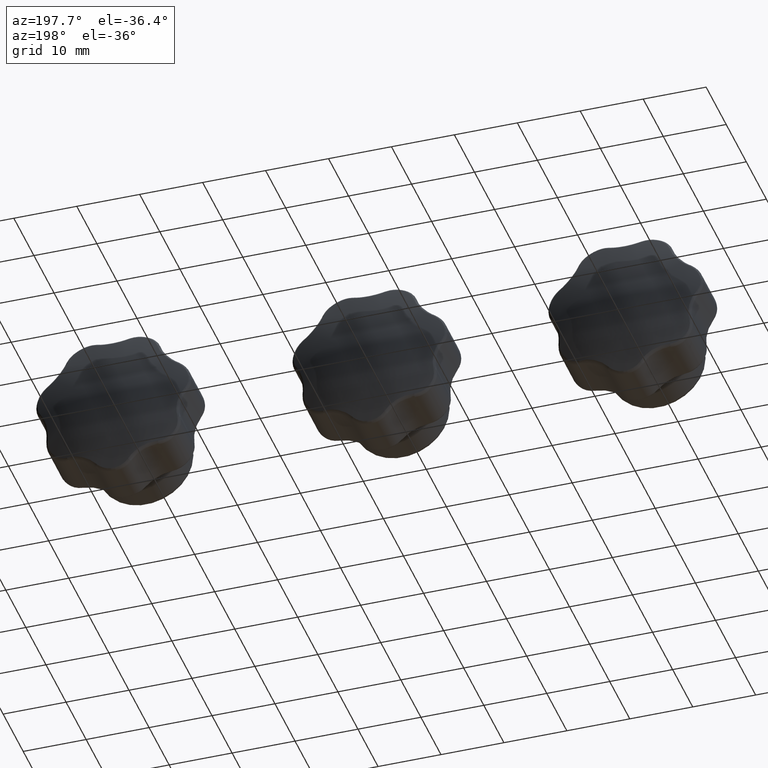
[diagram: clean part render]
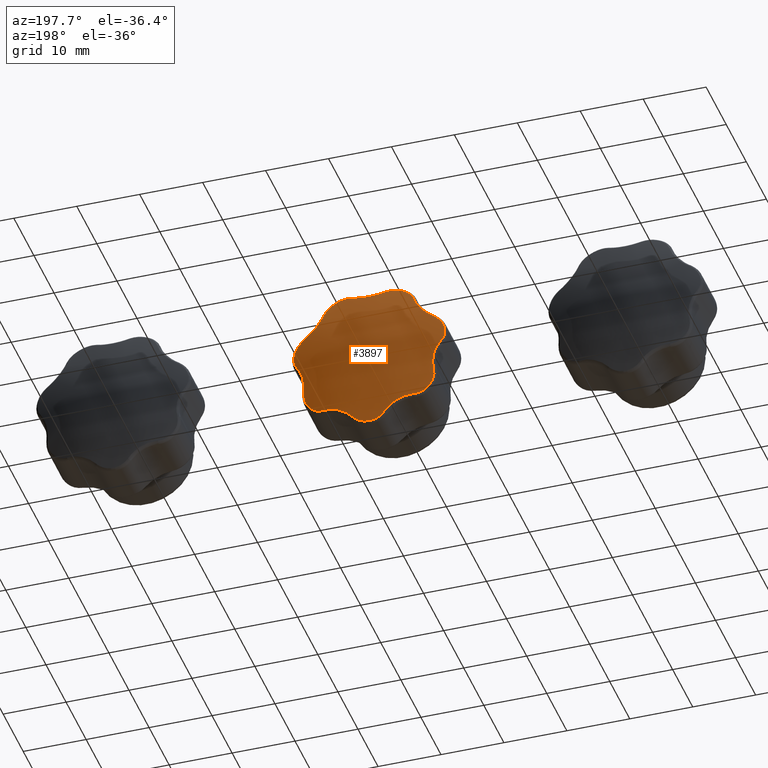
[diagram: same view with one face highlighted and labeled with its STEP entity id]
A machine part, auxiliary view. The second image highlights one B-rep face of the part: STEP entity #3897.
In plain terms, the highlighted spherical surface has radius 32.5 mm.
Its self-contained STEP definition (entity closure, byte-faithful):
#42=SPHERICAL_SURFACE('',#4326,32.4999999999999);
#365=B_SPLINE_CURVE_WITH_KNOTS('',3,(#6995,#6996,#6997,#6998,#6999),
 .UNSPECIFIED.,.F.,.F.,(4,1,4),(-0.537938930368822,-0.30739367449647,0.),
 .UNSPECIFIED.);
#368=B_SPLINE_CURVE_WITH_KNOTS('',3,(#7034,#7035,#7036,#7037),
 .UNSPECIFIED.,.F.,.F.,(4,4),(0.,0.241675960277011),.UNSPECIFIED.);
#370=B_SPLINE_CURVE_WITH_KNOTS('',3,(#7071,#7072,#7073,#7074),
 .UNSPECIFIED.,.F.,.F.,(4,4),(0.,0.241675824520155),.UNSPECIFIED.);
#371=B_SPLINE_CURVE_WITH_KNOTS('',3,(#7103,#7104,#7105,#7106,#7107),
 .UNSPECIFIED.,.F.,.F.,(4,1,4),(-0.537938011270218,-0.307393149297267,-9.18793732752318E-17),
 .UNSPECIFIED.);
#374=B_SPLINE_CURVE_WITH_KNOTS('',3,(#7140,#7141,#7142,#7143),
 .UNSPECIFIED.,.F.,.F.,(4,4),(0.,0.241675589524243),.UNSPECIFIED.);
#376=B_SPLINE_CURVE_WITH_KNOTS('',3,(#7177,#7178,#7179,#7180),
 .UNSPECIFIED.,.F.,.F.,(4,4),(0.,0.241674934807867),.UNSPECIFIED.);
#377=B_SPLINE_CURVE_WITH_KNOTS('',3,(#7209,#7210,#7211,#7212,#7213),
 .UNSPECIFIED.,.F.,.F.,(4,1,4),(-0.537938787143085,-0.307393592653191,0.),
 .UNSPECIFIED.);
#380=B_SPLINE_CURVE_WITH_KNOTS('',3,(#7246,#7247,#7248,#7249),
 .UNSPECIFIED.,.F.,.F.,(4,4),(0.,0.241675960277012),.UNSPECIFIED.);
#382=B_SPLINE_CURVE_WITH_KNOTS('',3,(#7283,#7284,#7285,#7286),
 .UNSPECIFIED.,.F.,.F.,(4,4),(0.,0.241675810913864),.UNSPECIFIED.);
#383=B_SPLINE_CURVE_WITH_KNOTS('',3,(#7315,#7316,#7317,#7318,#7319),
 .UNSPECIFIED.,.F.,.F.,(4,1,4),(-0.537936178785144,-0.230544076622204,-2.16219905471936E-17),
 .UNSPECIFIED.);
#386=B_SPLINE_CURVE_WITH_KNOTS('',3,(#7352,#7353,#7354,#7355),
 .UNSPECIFIED.,.F.,.F.,(4,4),(0.,0.241675587007755),.UNSPECIFIED.);
#388=B_SPLINE_CURVE_WITH_KNOTS('',3,(#7389,#7390,#7391,#7392),
 .UNSPECIFIED.,.F.,.F.,(4,4),(0.,0.241674934807867),.UNSPECIFIED.);
#389=B_SPLINE_CURVE_WITH_KNOTS('',3,(#7421,#7422,#7423,#7424,#7425),
 .UNSPECIFIED.,.F.,.F.,(4,1,4),(-0.537938793019843,-0.230545197008504,-2.04964250700022E-17),
 .UNSPECIFIED.);
#392=B_SPLINE_CURVE_WITH_KNOTS('',3,(#7458,#7459,#7460,#7461),
 .UNSPECIFIED.,.F.,.F.,(4,4),(0.,0.241675960277011),.UNSPECIFIED.);
#394=B_SPLINE_CURVE_WITH_KNOTS('',3,(#7495,#7496,#7497,#7498),
 .UNSPECIFIED.,.F.,.F.,(4,4),(0.,0.241675820909188),.UNSPECIFIED.);
#395=B_SPLINE_CURVE_WITH_KNOTS('',3,(#7527,#7528,#7529,#7530,#7531),
 .UNSPECIFIED.,.F.,.F.,(4,1,4),(-0.537938019927031,-0.307393154244018,-1.80748575954988E-16),
 .UNSPECIFIED.);
#398=B_SPLINE_CURVE_WITH_KNOTS('',3,(#7564,#7565,#7566,#7567),
 .UNSPECIFIED.,.F.,.F.,(4,4),(0.,0.241675590469706),.UNSPECIFIED.);
#400=B_SPLINE_CURVE_WITH_KNOTS('',3,(#7601,#7602,#7603,#7604),
 .UNSPECIFIED.,.F.,.F.,(4,4),(0.,0.241674934814627),.UNSPECIFIED.);
#401=B_SPLINE_CURVE_WITH_KNOTS('',3,(#7633,#7634,#7635,#7636,#7637),
 .UNSPECIFIED.,.F.,.F.,(4,1,4),(-0.537938930368822,-0.230545255872352,-2.07092251702957E-16),
 .UNSPECIFIED.);
#404=B_SPLINE_CURVE_WITH_KNOTS('',3,(#7670,#7671,#7672,#7673),
 .UNSPECIFIED.,.F.,.F.,(4,4),(0.,0.24167596027701),.UNSPECIFIED.);
#406=B_SPLINE_CURVE_WITH_KNOTS('',3,(#7704,#7705,#7706,#7707),
 .UNSPECIFIED.,.F.,.F.,(4,4),(3.54558241127934E-16,0.241675960277011),
 .UNSPECIFIED.);
#753=FACE_OUTER_BOUND('',#1036,.T.);
#1036=EDGE_LOOP('',(#3118,#3119,#3120,#3121,#3122,#3123,#3124,#3125,#3126,
#3127,#3128,#3129,#3130,#3131,#3132,#3133,#3134,#3135,#3136,#3137,#3138,
#3139,#3140,#3141,#3142,#3143,#3144,#3145));
#1325=CIRCLE('',#4254,12.1875);
#1331=CIRCLE('',#4261,12.1875);
#1337=CIRCLE('',#4268,12.1875);
#1343=CIRCLE('',#4275,12.1875);
#1349=CIRCLE('',#4282,12.1875);
#1355=CIRCLE('',#4289,12.1875);
#1361=CIRCLE('',#4296,12.1875);
#1704=VERTEX_POINT('',#6992);
#1705=VERTEX_POINT('',#6994);
#1708=VERTEX_POINT('',#7032);
#1710=VERTEX_POINT('',#7040);
#1712=VERTEX_POINT('',#7069);
#1714=VERTEX_POINT('',#7101);
#1716=VERTEX_POINT('',#7138);
#1718=VERTEX_POINT('',#7146);
#1720=VERTEX_POINT('',#7175);
#1722=VERTEX_POINT('',#7207);
#1724=VERTEX_POINT('',#7244);
#1726=VERTEX_POINT('',#7252);
#1728=VERTEX_POINT('',#7281);
#1730=VERTEX_POINT('',#7313);
#1732=VERTEX_POINT('',#7350);
#1734=VERTEX_POINT('',#7358);
#1736=VERTEX_POINT('',#7387);
#1738=VERTEX_POINT('',#7419);
#1740=VERTEX_POINT('',#7456);
#1742=VERTEX_POINT('',#7464);
#1744=VERTEX_POINT('',#7493);
#1746=VERTEX_POINT('',#7525);
#1748=VERTEX_POINT('',#7562);
#1750=VERTEX_POINT('',#7570);
#1752=VERTEX_POINT('',#7599);
#1754=VERTEX_POINT('',#7631);
#1756=VERTEX_POINT('',#7668);
#1758=VERTEX_POINT('',#7676);
#2142=EDGE_CURVE('',#1704,#1705,#365,.T.);
#2147=EDGE_CURVE('',#1708,#1704,#368,.T.);
#2149=EDGE_CURVE('',#1710,#1708,#1325,.T.);
#2153=EDGE_CURVE('',#1712,#1710,#370,.T.);
#2155=EDGE_CURVE('',#1714,#1712,#371,.T.);
#2159=EDGE_CURVE('',#1716,#1714,#374,.T.);
#2161=EDGE_CURVE('',#1718,#1716,#1331,.T.);
#2165=EDGE_CURVE('',#1720,#1718,#376,.T.);
#2167=EDGE_CURVE('',#1722,#1720,#377,.T.);
#2171=EDGE_CURVE('',#1724,#1722,#380,.T.);
#2173=EDGE_CURVE('',#1726,#1724,#1337,.T.);
#2177=EDGE_CURVE('',#1728,#1726,#382,.T.);
#2179=EDGE_CURVE('',#1730,#1728,#383,.T.);
#2183=EDGE_CURVE('',#1732,#1730,#386,.T.);
#2185=EDGE_CURVE('',#1734,#1732,#1343,.T.);
#2189=EDGE_CURVE('',#1736,#1734,#388,.T.);
#2191=EDGE_CURVE('',#1738,#1736,#389,.T.);
#2195=EDGE_CURVE('',#1740,#1738,#392,.T.);
#2197=EDGE_CURVE('',#1742,#1740,#1349,.T.);
#2201=EDGE_CURVE('',#1744,#1742,#394,.T.);
#2203=EDGE_CURVE('',#1746,#1744,#395,.T.);
#2207=EDGE_CURVE('',#1748,#1746,#398,.T.);
#2209=EDGE_CURVE('',#1750,#1748,#1355,.T.);
#2213=EDGE_CURVE('',#1752,#1750,#400,.T.);
#2215=EDGE_CURVE('',#1754,#1752,#401,.T.);
#2219=EDGE_CURVE('',#1756,#1754,#404,.T.);
#2221=EDGE_CURVE('',#1758,#1756,#1361,.T.);
#2224=EDGE_CURVE('',#1705,#1758,#406,.T.);
#3118=ORIENTED_EDGE('',*,*,#2142,.F.);
#3119=ORIENTED_EDGE('',*,*,#2147,.F.);
#3120=ORIENTED_EDGE('',*,*,#2149,.F.);
#3121=ORIENTED_EDGE('',*,*,#2153,.F.);
#3122=ORIENTED_EDGE('',*,*,#2155,.F.);
#3123=ORIENTED_EDGE('',*,*,#2159,.F.);
#3124=ORIENTED_EDGE('',*,*,#2161,.F.);
#3125=ORIENTED_EDGE('',*,*,#2165,.F.);
#3126=ORIENTED_EDGE('',*,*,#2167,.F.);
#3127=ORIENTED_EDGE('',*,*,#2171,.F.);
#3128=ORIENTED_EDGE('',*,*,#2173,.F.);
#3129=ORIENTED_EDGE('',*,*,#2177,.F.);
#3130=ORIENTED_EDGE('',*,*,#2179,.F.);
#3131=ORIENTED_EDGE('',*,*,#2183,.F.);
#3132=ORIENTED_EDGE('',*,*,#2185,.F.);
#3133=ORIENTED_EDGE('',*,*,#2189,.F.);
#3134=ORIENTED_EDGE('',*,*,#2191,.F.);
#3135=ORIENTED_EDGE('',*,*,#2195,.F.);
#3136=ORIENTED_EDGE('',*,*,#2197,.F.);
#3137=ORIENTED_EDGE('',*,*,#2201,.F.);
#3138=ORIENTED_EDGE('',*,*,#2203,.F.);
#3139=ORIENTED_EDGE('',*,*,#2207,.F.);
#3140=ORIENTED_EDGE('',*,*,#2209,.F.);
#3141=ORIENTED_EDGE('',*,*,#2213,.F.);
#3142=ORIENTED_EDGE('',*,*,#2215,.F.);
#3143=ORIENTED_EDGE('',*,*,#2219,.F.);
#3144=ORIENTED_EDGE('',*,*,#2221,.F.);
#3145=ORIENTED_EDGE('',*,*,#2224,.F.);
#3897=ADVANCED_FACE('',(#753),#42,.T.);
#4254=AXIS2_PLACEMENT_3D('',#7042,#5112,#5113);
#4261=AXIS2_PLACEMENT_3D('',#7148,#5126,#5127);
#4268=AXIS2_PLACEMENT_3D('',#7254,#5140,#5141);
#4275=AXIS2_PLACEMENT_3D('',#7360,#5154,#5155);
#4282=AXIS2_PLACEMENT_3D('',#7466,#5168,#5169);
#4289=AXIS2_PLACEMENT_3D('',#7572,#5182,#5183);
#4296=AXIS2_PLACEMENT_3D('',#7678,#5196,#5197);
#4326=AXIS2_PLACEMENT_3D('',#7766,#5271,#5272);
#5112=DIRECTION('center_axis',(1.05688744923203E-32,-1.,0.));
#5113=DIRECTION('ref_axis',(-0.78183148246803,0.,-0.623489801858734));
#5126=DIRECTION('center_axis',(1.05688744923203E-32,-1.,0.));
#5127=DIRECTION('ref_axis',(-0.974927912181824,0.,0.222520933956314));
#5140=DIRECTION('center_axis',(1.05688744923203E-32,-1.,0.));
#5141=DIRECTION('ref_axis',(-0.433883739117558,0.,0.900968867902419));
#5154=DIRECTION('center_axis',(1.05688744923203E-32,-1.,0.));
#5155=DIRECTION('ref_axis',(0.433883739117558,0.,0.900968867902419));
#5168=DIRECTION('center_axis',(1.05688744923203E-32,-1.,0.));
#5169=DIRECTION('ref_axis',(0.974927912181824,0.,0.222520933956314));
#5182=DIRECTION('center_axis',(1.05688744923203E-32,-1.,0.));
#5183=DIRECTION('ref_axis',(0.78183148246803,0.,-0.623489801858733));
#5196=DIRECTION('center_axis',(1.05688744923203E-32,-1.,0.));
#5197=DIRECTION('ref_axis',(1.83697019872103E-16,0.,-1.));
#5271=DIRECTION('center_axis',(6.12323399573677E-17,0.,1.));
#5272=DIRECTION('ref_axis',(1.,0.,0.));
#6992=CARTESIAN_POINT('',(-7.23025296655237,7.90662068333488,-8.91127716208245));
#6994=CARTESIAN_POINT('',(-2.45912804481016,7.90662068333488,-11.2089298275536));
#6995=CARTESIAN_POINT('Ctrl Pts',(-7.23025296655238,7.90662068333488,-8.91127716208245));
#6996=CARTESIAN_POINT('Ctrl Pts',(-6.46936110971932,8.07097330790469,-8.9678383802244));
#6997=CARTESIAN_POINT('Ctrl Pts',(-4.67850659905425,8.30268202246468,-9.38813169245213));
#6998=CARTESIAN_POINT('Ctrl Pts',(-3.150634250254,8.12575751609463,-10.4627646732423));
#6999=CARTESIAN_POINT('Ctrl Pts',(-2.45912804481016,7.90662068333488,-11.2089298275536));
#7032=CARTESIAN_POINT('',(-9.33918054516456,7.62830635382613,-7.8303807694658));
#7034=CARTESIAN_POINT('Ctrl Pts',(-9.33918054516456,7.62830635382613,-7.8303807694658));
#7035=CARTESIAN_POINT('Ctrl Pts',(-8.81350976966587,7.62830635382613,-8.45734061014719));
#7036=CARTESIAN_POINT('Ctrl Pts',(-8.02788061441384,7.73433312869984,-8.85198517337001));
#7037=CARTESIAN_POINT('Ctrl Pts',(-7.23025296655237,7.90662068333488,-8.91127716208245));
#7040=CARTESIAN_POINT('',(-9.71221995246065,7.62830635382612,-7.3626041483313));
#7042=CARTESIAN_POINT('Origin',(9.75781955236929E-18,7.62830635382612,0.));
#7069=CARTESIAN_POINT('',(-10.2967354813603,7.90662068333488,-5.06602971237719));
#7071=CARTESIAN_POINT('Ctrl Pts',(-10.2967354813603,7.90662068333488,-5.06602971237719));
#7072=CARTESIAN_POINT('Ctrl Pts',(-10.4164188485174,7.73433322547908,-5.85685243427988));
#7073=CARTESIAN_POINT('Ctrl Pts',(-10.206487571395,7.62830635382613,-6.71060171362794));
#7074=CARTESIAN_POINT('Ctrl Pts',(-9.71221995246065,7.62830635382613,-7.3626041483313));
#7101=CARTESIAN_POINT('',(-11.4751060238187,7.90662068333488,0.0967489633634613));
#7103=CARTESIAN_POINT('Ctrl Pts',(-11.4751060238187,7.90662068333488,0.0967489633634617));
#7104=CARTESIAN_POINT('Ctrl Pts',(-11.0449197867944,8.07097302709909,-0.533404511100265));
#7105=CARTESIAN_POINT('Ctrl Pts',(-10.2569371013767,8.30268417425127,-2.19558555572589));
#7106=CARTESIAN_POINT('Ctrl Pts',(-10.144507399706,8.12575714168718,-4.06016374500461));
#7107=CARTESIAN_POINT('Ctrl Pts',(-10.2967354813603,7.90662068333488,-5.06602971237719));
#7138=CARTESIAN_POINT('',(-11.9449220329082,7.62830635382613,2.41950281622992));
#7140=CARTESIAN_POINT('Ctrl Pts',(-11.9449220329082,7.62830635382613,2.41950281622992));
#7141=CARTESIAN_POINT('Ctrl Pts',(-12.1073483577604,7.62830635382613,1.61761501786209));
#7142=CARTESIAN_POINT('Ctrl Pts',(-11.9260616926995,7.73433339300452,0.75732630665571));
#7143=CARTESIAN_POINT('Ctrl Pts',(-11.4751060238187,7.90662068333488,0.0967489633634604));
#7146=CARTESIAN_POINT('',(-11.8117858098833,7.62830635382613,3.00281072188051));
#7148=CARTESIAN_POINT('Origin',(9.75781955236942E-18,7.62830635382613,0.));
#7175=CARTESIAN_POINT('',(-10.38069108532,7.90662068333488,4.89169410439255));
#7177=CARTESIAN_POINT('Ctrl Pts',(-10.38069108532,7.90662068333488,4.89169410439254));
#7178=CARTESIAN_POINT('Ctrl Pts',(-11.0735999943251,7.73433385974305,4.49219789730141));
#7179=CARTESIAN_POINT('Ctrl Pts',(-11.6102013417025,7.62830635382613,3.79575865676052));
#7180=CARTESIAN_POINT('Ctrl Pts',(-11.8117858098833,7.62830635382613,3.00281072188051));
#7207=CARTESIAN_POINT('',(-7.07897019564497,7.90662068333488,9.03192114607751));
#7209=CARTESIAN_POINT('Ctrl Pts',(-7.07897019564497,7.90662068333488,9.0319211460775));
#7210=CARTESIAN_POINT('Ctrl Pts',(-7.30342761281921,8.07097326414596,8.30269268594219));
#7211=CARTESIAN_POINT('Ctrl Pts',(-8.11168878131224,8.30267962978201,6.65026701013126));
#7212=CARTESIAN_POINT('Ctrl Pts',(-9.49935947726637,8.12575745774966,5.3998253032142));
#7213=CARTESIAN_POINT('Ctrl Pts',(-10.38069108532,7.90662068333488,4.89169410439255));
#7244=CARTESIAN_POINT('',(-5.55589359786733,7.62830635382613,10.8474514324415));
#7246=CARTESIAN_POINT('Ctrl Pts',(-5.55589359786733,7.62830635382613,10.8474514324415));
#7247=CARTESIAN_POINT('Ctrl Pts',(-6.2841069982822,7.62830635382613,10.4744720100911));
#7248=CARTESIAN_POINT('Ctrl Pts',(-6.84367593172892,7.73433312869984,9.79635689480118));
#7249=CARTESIAN_POINT('Ctrl Pts',(-7.07897019564497,7.90662068333488,9.0319211460775));
#7252=CARTESIAN_POINT('',(-5.01683603594317,7.62830635382613,11.1070478723404));
#7254=CARTESIAN_POINT('Origin',(9.75781955236942E-18,7.62830635382613,0.));
#7281=CARTESIAN_POINT('',(-2.64777457452557,7.90662068333488,11.1658724881797));
#7283=CARTESIAN_POINT('Ctrl Pts',(-2.64777457452557,7.90662068333488,11.1658724881797));
#7284=CARTESIAN_POINT('Ctrl Pts',(-3.39213762314982,7.73433323517882,11.4585297376402));
#7285=CARTESIAN_POINT('Ctrl Pts',(-4.27119581333012,7.62830635382613,11.4438389604539));
#7286=CARTESIAN_POINT('Ctrl Pts',(-5.01683603594318,7.62830635382613,11.1070478723404));
#7313=CARTESIAN_POINT('',(2.64777457452556,7.90662068333488,11.1658724881797));
#7315=CARTESIAN_POINT('Ctrl Pts',(2.64777457452556,7.90662068333488,11.1658724881797));
#7316=CARTESIAN_POINT('Ctrl Pts',(1.70100492710489,8.12575639519912,10.7936361158894));
#7317=CARTESIAN_POINT('Ctrl Pts',(-0.141651871664147,8.30268779827217,10.4883314972091));
#7318=CARTESIAN_POINT('Ctrl Pts',(-1.93769733896007,8.07097246723306,10.886695208962));
#7319=CARTESIAN_POINT('Ctrl Pts',(-2.64777457452557,7.90662068333488,11.1658724881797));
#7350=CARTESIAN_POINT('',(5.01683603594317,7.62830635382613,11.1070478723404));
#7352=CARTESIAN_POINT('Ctrl Pts',(5.01683603594317,7.62830635382613,11.1070478723404));
#7353=CARTESIAN_POINT('Ctrl Pts',(4.27119650414564,7.62830635382613,11.443838648426));
#7354=CARTESIAN_POINT('Ctrl Pts',(3.39213693351756,7.73433339479849,11.4585294665011));
#7355=CARTESIAN_POINT('Ctrl Pts',(2.64777457452556,7.90662068333488,11.1658724881797));
#7358=CARTESIAN_POINT('',(5.55589359786733,7.62830635382613,10.8474514324415));
#7360=CARTESIAN_POINT('Origin',(9.75781955236942E-18,7.62830635382613,0.));
#7387=CARTESIAN_POINT('',(7.07897019564497,7.90662068333488,9.03192114607751));
#7389=CARTESIAN_POINT('Ctrl Pts',(7.07897019564497,7.90662068333488,9.03192114607751));
#7390=CARTESIAN_POINT('Ctrl Pts',(6.84367693011952,7.73433385974305,9.79635365117996));
#7391=CARTESIAN_POINT('Ctrl Pts',(6.28410390835811,7.62830635382613,10.4744735927015));
#7392=CARTESIAN_POINT('Ctrl Pts',(5.55589359786733,7.62830635382613,10.8474514324415));
#7419=CARTESIAN_POINT('',(10.38069108532,7.90662068333488,4.89169410439255));
#7421=CARTESIAN_POINT('Ctrl Pts',(10.38069108532,7.90662068333488,4.89169410439255));
#7422=CARTESIAN_POINT('Ctrl Pts',(9.49935946763819,8.12575746014363,5.39982530876532));
#7423=CARTESIAN_POINT('Ctrl Pts',(8.11176292810914,8.30268020965088,6.65017243224329));
#7424=CARTESIAN_POINT('Ctrl Pts',(7.30342761527132,8.07097326594145,8.30269267797563));
#7425=CARTESIAN_POINT('Ctrl Pts',(7.07897019564497,7.90662068333488,9.0319211460775));
#7456=CARTESIAN_POINT('',(11.8117858098833,7.62830635382613,3.00281072188052));
#7458=CARTESIAN_POINT('Ctrl Pts',(11.8117858098833,7.62830635382613,3.00281072188052));
#7459=CARTESIAN_POINT('Ctrl Pts',(11.6102004863442,7.62830635382613,3.79576202137771));
#7460=CARTESIAN_POINT('Ctrl Pts',(11.0736029344592,7.73433312869983,4.49219620216893));
#7461=CARTESIAN_POINT('Ctrl Pts',(10.38069108532,7.90662068333488,4.89169410439255));
#7464=CARTESIAN_POINT('',(11.9449220329082,7.62830635382613,2.41950281622993));
#7466=CARTESIAN_POINT('Origin',(9.75781955236942E-18,7.62830635382613,0.));
#7493=CARTESIAN_POINT('',(11.4751060238187,7.90662068333488,0.0967489633634668));
#7495=CARTESIAN_POINT('Ctrl Pts',(11.4751060238187,7.90662068333488,0.0967489633634679));
#7496=CARTESIAN_POINT('Ctrl Pts',(11.9260621244533,7.73433322805329,0.757326939105414));
#7497=CARTESIAN_POINT('Ctrl Pts',(12.1073485132705,7.62830635382613,1.617614250119));
#7498=CARTESIAN_POINT('Ctrl Pts',(11.9449220329082,7.62830635382613,2.41950281622992));
#7525=CARTESIAN_POINT('',(10.2967354813603,7.90662068333487,-5.06602971237719));
#7527=CARTESIAN_POINT('Ctrl Pts',(10.2967354813603,7.90662068333488,-5.06602971237719));
#7528=CARTESIAN_POINT('Ctrl Pts',(10.1825644182822,8.07097302974394,-4.31163022470758));
#7529=CARTESIAN_POINT('Ctrl Pts',(10.1938099134448,8.30268417016961,-2.4721638684934));
#7530=CARTESIAN_POINT('Ctrl Pts',(10.9015243652225,8.12575714521365,-0.743455682775967));
#7531=CARTESIAN_POINT('Ctrl Pts',(11.4751060238187,7.90662068333488,0.0967489633634693));
#7562=CARTESIAN_POINT('',(9.71221995246065,7.62830635382613,-7.36260414833129));
#7564=CARTESIAN_POINT('Ctrl Pts',(9.71221995246065,7.62830635382613,-7.36260414833129));
#7565=CARTESIAN_POINT('Ctrl Pts',(10.2064870927225,7.62830635382613,-6.71060234505836));
#7566=CARTESIAN_POINT('Ctrl Pts',(10.4164187326103,7.73433339233051,-5.85685166840927));
#7567=CARTESIAN_POINT('Ctrl Pts',(10.2967354813603,7.90662068333488,-5.06602971237718));
#7570=CARTESIAN_POINT('',(9.33918054516456,7.62830635382613,-7.83038076946579));
#7572=CARTESIAN_POINT('Origin',(9.75781955236942E-18,7.62830635382613,0.));
#7599=CARTESIAN_POINT('',(7.23025296655237,7.90662068333488,-8.91127716208245));
#7601=CARTESIAN_POINT('Ctrl Pts',(7.23025296655238,7.90662068333488,-8.91127716208245));
#7602=CARTESIAN_POINT('Ctrl Pts',(8.02787722997649,7.73433385973823,-8.85198542495359));
#7603=CARTESIAN_POINT('Ctrl Pts',(8.81351200015502,7.62830635382613,-8.45733794987543));
#7604=CARTESIAN_POINT('Ctrl Pts',(9.33918054516456,7.62830635382613,-7.8303807694658));
#7631=CARTESIAN_POINT('',(2.45912804481016,7.90662068333488,-11.2089298275536));
#7633=CARTESIAN_POINT('Ctrl Pts',(2.45912804481016,7.90662068333487,-11.2089298275536));
#7634=CARTESIAN_POINT('Ctrl Pts',(3.15063425025401,8.12575751609463,-10.4627646732423));
#7635=CARTESIAN_POINT('Ctrl Pts',(4.67840378628223,8.30268253561856,-9.3881802239234));
#7636=CARTESIAN_POINT('Ctrl Pts',(6.46936110971927,8.0709733079047,-8.9678383802244));
#7637=CARTESIAN_POINT('Ctrl Pts',(7.23025296655238,7.90662068333488,-8.91127716208245));
#7668=CARTESIAN_POINT('',(0.299154377653007,7.62830635382613,-12.1838279250953));
#7670=CARTESIAN_POINT('Ctrl Pts',(0.299154377653009,7.62830635382613,-12.1838279250953));
#7671=CARTESIAN_POINT('Ctrl Pts',(1.11708168699947,7.62830635382613,-12.1637450302368));
#7672=CARTESIAN_POINT('Ctrl Pts',(1.91545899725443,7.73433312869984,-11.7955722836445));
#7673=CARTESIAN_POINT('Ctrl Pts',(2.45912804481016,7.90662068333487,-11.2089298275536));
#7676=CARTESIAN_POINT('',(-0.299154377653004,7.62830635382613,-12.1838279250953));
#7678=CARTESIAN_POINT('Origin',(9.75781955236942E-18,7.62830635382613,0.));
#7704=CARTESIAN_POINT('Ctrl Pts',(-2.45912804481016,7.90662068333488,-11.2089298275536));
#7705=CARTESIAN_POINT('Ctrl Pts',(-1.91545899725443,7.73433312869984,-11.7955722836445));
#7706=CARTESIAN_POINT('Ctrl Pts',(-1.11708168699946,7.62830635382613,-12.1637450302368));
#7707=CARTESIAN_POINT('Ctrl Pts',(-0.299154377653004,7.62830635382613,-12.1838279250953));
#7766=CARTESIAN_POINT('Origin',(-6.24500451351651E-16,-22.4999999999999,
0.));